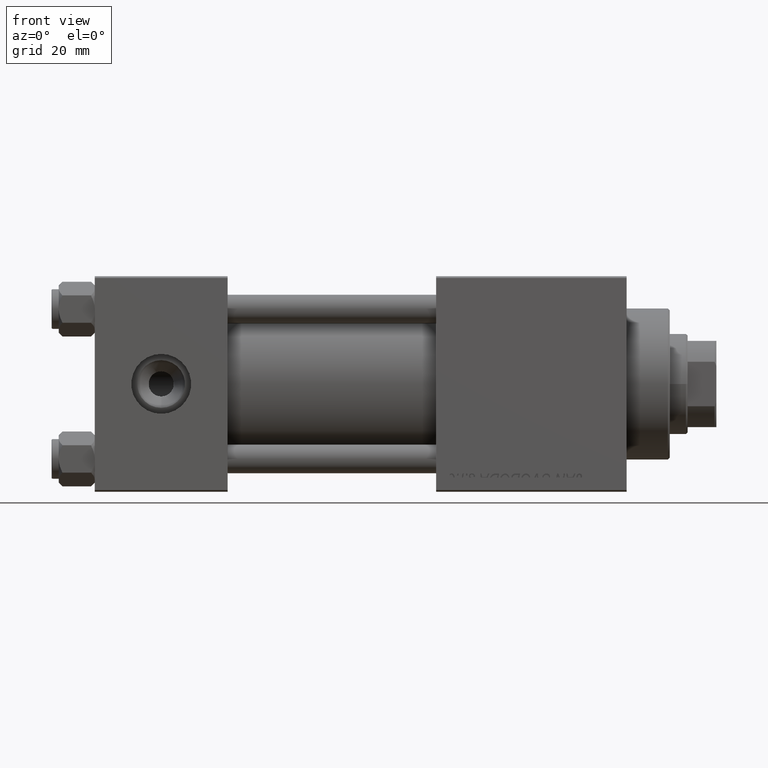
[diagram: clean part render]
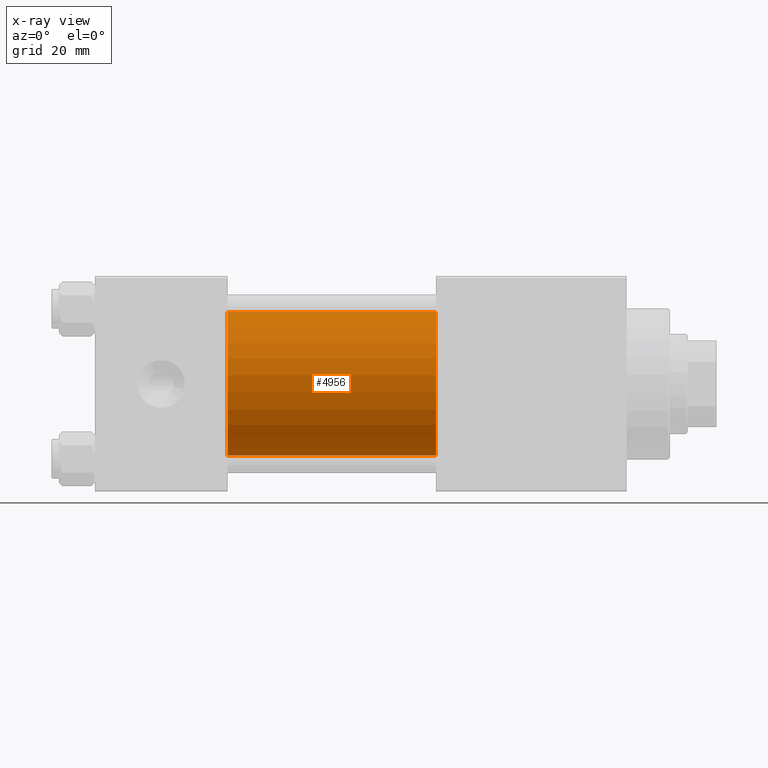
[diagram: x-ray — body ghosted, one internal face saturated and labeled with its STEP entity id]
A machine part, front view, then the same camera in x-ray: the body is ghosted and one INTERNAL B-rep face — a face not visible from any outside direction — is saturated and labeled: STEP entity #4956.
In plain terms, the highlighted cylindrical surface (partial cylindrical patch) has radius 20 mm, axis along (-1, -0, -0).
Its self-contained STEP definition (entity closure, byte-faithful):
#732 = DIRECTION ( 'NONE',  ( -1.000000000000000000, -0.000000000000000000, -0.000000000000000000 ) ) ;
#1461 = DIRECTION ( 'NONE',  ( 0.000000000000000000, 0.000000000000000000, -1.000000000000000000 ) ) ;
#1709 = CARTESIAN_POINT ( 'NONE',  ( 37.00000000000000000, -2.602085213965210642E-15, 0.000000000000000000 ) ) ;
#1740 = EDGE_LOOP ( 'NONE', ( #13810, #24327, #8433, #41881 ) ) ;
#4252 = EDGE_CURVE ( 'NONE', #30764, #29219, #26149, .T. ) ;
#4956 = ADVANCED_FACE ( 'NONE', ( #43376 ), #20256, .F. ) ;
#5522 = CARTESIAN_POINT ( 'NONE',  ( 95.00000000000000000, -2.602085213965210642E-15, 20.00000000000000000 ) ) ;
#5614 = DIRECTION ( 'NONE',  ( -1.000000000000000000, -0.000000000000000000, -0.000000000000000000 ) ) ;
#8433 = ORIENTED_EDGE ( 'NONE', *, *, #4252, .F. ) ;
#8849 = DIRECTION ( 'NONE',  ( 0.000000000000000000, 0.000000000000000000, 1.000000000000000000 ) ) ;
#9197 = EDGE_CURVE ( 'NONE', #22598, #29219, #22079, .T. ) ;
#10081 = LINE ( 'NONE', #5522, #41290 ) ;
#10177 = CARTESIAN_POINT ( 'NONE',  ( 95.00000000000000000, -1.527916156705046464E-16, -20.00000000000000000 ) ) ;
#10379 = CARTESIAN_POINT ( 'NONE',  ( 95.00000000000000000, -1.527916156705046464E-16, -20.00000000000000000 ) ) ;
#11786 = EDGE_CURVE ( 'NONE', #45678, #22598, #43331, .T. ) ;
#13810 = ORIENTED_EDGE ( 'NONE', *, *, #11786, .T. ) ;
#18959 = VECTOR ( 'NONE', #5614, 1000.000000000000000 ) ;
#20256 = CYLINDRICAL_SURFACE ( 'NONE', #24563, 20.00000000000000000 ) ;
#22079 = LINE ( 'NONE', #10177, #18959 ) ;
#22598 = VERTEX_POINT ( 'NONE', #10379 ) ;
#24078 = CARTESIAN_POINT ( 'NONE',  ( 95.00000000000000000, -2.602085213965210642E-15, 0.000000000000000000 ) ) ;
#24327 = ORIENTED_EDGE ( 'NONE', *, *, #9197, .T. ) ;
#24563 = AXIS2_PLACEMENT_3D ( 'NONE', #24078, #732, #8849 ) ;
#25788 = DIRECTION ( 'NONE',  ( 1.000000000000000000, 0.000000000000000000, 0.000000000000000000 ) ) ;
#26149 = CIRCLE ( 'NONE', #28570, 20.00000000000000000 ) ;
#28021 = EDGE_CURVE ( 'NONE', #45678, #30764, #10081, .T. ) ;
#28570 = AXIS2_PLACEMENT_3D ( 'NONE', #1709, #47927, #1461 ) ;
#29089 = DIRECTION ( 'NONE',  ( -1.000000000000000000, -0.000000000000000000, -0.000000000000000000 ) ) ;
#29219 = VERTEX_POINT ( 'NONE', #44055 ) ;
#30764 = VERTEX_POINT ( 'NONE', #43393 ) ;
#31239 = CARTESIAN_POINT ( 'NONE',  ( 95.00000000000000000, -2.602085213965210642E-15, 20.00000000000000000 ) ) ;
#40066 = AXIS2_PLACEMENT_3D ( 'NONE', #43653, #25788, #41266 ) ;
#41266 = DIRECTION ( 'NONE',  ( 0.000000000000000000, 0.000000000000000000, -1.000000000000000000 ) ) ;
#41290 = VECTOR ( 'NONE', #29089, 1000.000000000000000 ) ;
#41881 = ORIENTED_EDGE ( 'NONE', *, *, #28021, .F. ) ;
#43331 = CIRCLE ( 'NONE', #40066, 20.00000000000000000 ) ;
#43376 = FACE_OUTER_BOUND ( 'NONE', #1740, .T. ) ;
#43393 = CARTESIAN_POINT ( 'NONE',  ( 37.00000000000000000, -2.602085213965210642E-15, 20.00000000000000000 ) ) ;
#43653 = CARTESIAN_POINT ( 'NONE',  ( 95.00000000000000000, -2.602085213965210642E-15, 0.000000000000000000 ) ) ;
#44055 = CARTESIAN_POINT ( 'NONE',  ( 37.00000000000000000, -1.527916156705046464E-16, -20.00000000000000000 ) ) ;
#45678 = VERTEX_POINT ( 'NONE', #31239 ) ;
#47927 = DIRECTION ( 'NONE',  ( 1.000000000000000000, 0.000000000000000000, 0.000000000000000000 ) ) ;